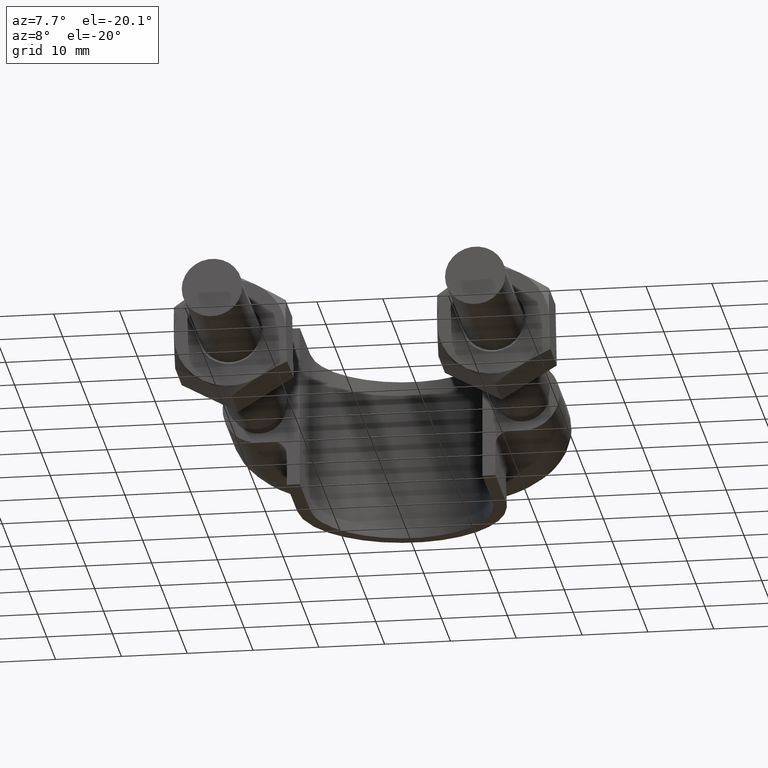
[diagram: clean part render]
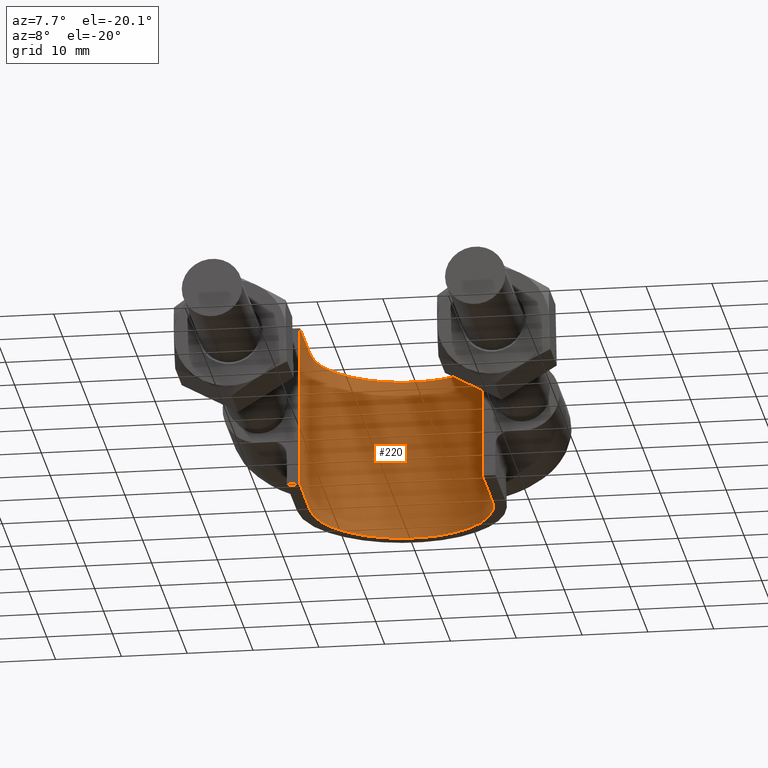
[diagram: same view with one face highlighted and labeled with its STEP entity id]
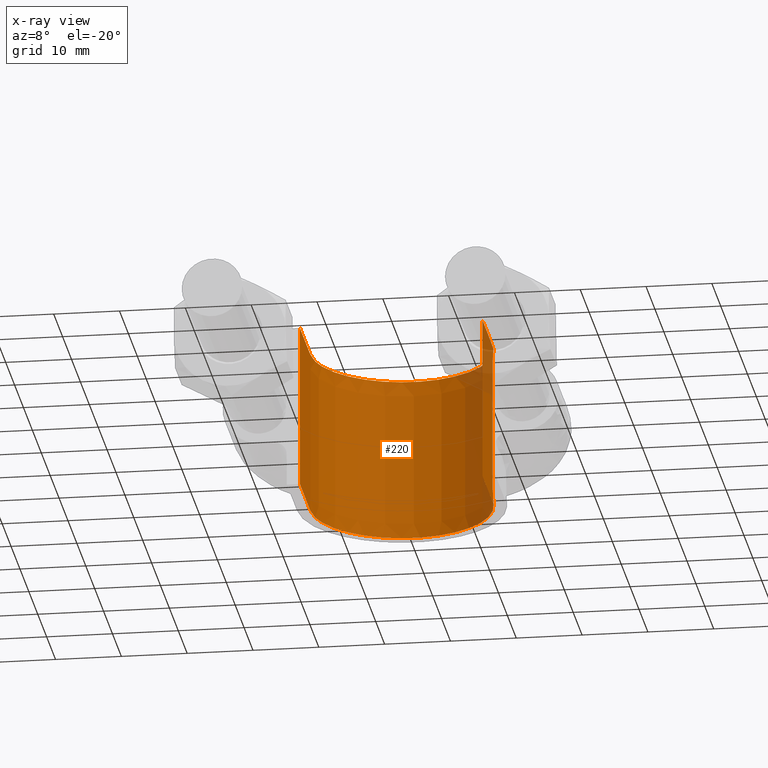
[diagram: x-ray of the same camera — body ghosted, the highlighted face saturated]
A machine part, auxiliary view. The second image highlights one B-rep face of the part: STEP entity #220.
The next image is the same camera in x-ray: the body ghosted, the highlighted face saturated — about 4% of this face is hidden behind the body in this view.
In plain terms, the highlighted face is a SurfaceOfExtrusion surface.
Its self-contained STEP definition (entity closure, byte-faithful):
#220 = ADVANCED_FACE( '', ( #283 ), #284, .T. );
#283 = FACE_OUTER_BOUND( '', #422, .T. );
#284 = SURFACE_OF_LINEAR_EXTRUSION( '', #423, #424 );
#422 = EDGE_LOOP( '', ( #1285, #1286, #1287, #1288 ) );
#423 = B_SPLINE_CURVE_WITH_KNOTS( '', 3, ( #1289, #1290, #1291, #1292, #1293, #1294, #1295, #1296, #1297, #1298, #1299, #1300, #1301, #1302, #1303, #1304, #1305, #1306 ), .UNSPECIFIED., .F., .F., ( 4, 3, 1, 1, 1, 1, 1, 1, 1, 1, 3, 4 ), ( 0.263975155279503, 1.00000000000000, 1.50000000000000, 1.75000000000000, 2.00000000000000, 3.00000000000000, 4.00000000000000, 5.00000000000000, 5.25000000000000, 5.50000000000000, 6.00000000000000, 6.73602484472050 ), .UNSPECIFIED. );
#424 = VECTOR( '', #1307, 1000.00000000000 );
#1285 = ORIENTED_EDGE( '', *, *, #1736, .F. );
#1286 = ORIENTED_EDGE( '', *, *, #1739, .T. );
#1287 = ORIENTED_EDGE( '', *, *, #1740, .T. );
#1288 = ORIENTED_EDGE( '', *, *, #1741, .F. );
#1289 = CARTESIAN_POINT( '', ( -13.8500000000000, 53.3000000000000, -59.0898515348929 ) );
#1290 = CARTESIAN_POINT( '', ( -13.8500000000000, 57.2500000000000, -59.0898515348929 ) );
#1291 = CARTESIAN_POINT( '', ( -13.8500000000000, 61.2000000000000, -59.0898515348929 ) );
#1292 = CARTESIAN_POINT( '', ( -13.8500000000000, 65.1500000000000, -59.0898515348929 ) );
#1293 = CARTESIAN_POINT( '', ( -13.8500000000000, 66.5764090913196, -59.0898515348929 ) );
#1294 = CARTESIAN_POINT( '', ( -13.4987711149041, 68.7652103300043, -59.0898515348929 ) );
#1295 = CARTESIAN_POINT( '', ( -12.3762577063388, 71.4805432618923, -59.0898515348929 ) );
#1296 = CARTESIAN_POINT( '', ( -10.1312776771716, 75.1665191788760, -59.0898515348929 ) );
#1297 = CARTESIAN_POINT( '', ( -4.56410324862349, 79.2237366283484, -59.0898515348929 ) );
#1298 = CARTESIAN_POINT( '', ( 4.56410324862353, 79.2237366283484, -59.0898515348929 ) );
#1299 = CARTESIAN_POINT( '', ( 10.1312776771716, 75.1665191788760, -59.0898515348929 ) );
#1300 = CARTESIAN_POINT( '', ( 12.3762577063388, 71.4805432618923, -59.0898515348929 ) );
#1301 = CARTESIAN_POINT( '', ( 13.4987711149041, 68.7652103300043, -59.0898515348929 ) );
#1302 = CARTESIAN_POINT( '', ( 13.8500000000000, 66.5764090913196, -59.0898515348929 ) );
#1303 = CARTESIAN_POINT( '', ( 13.8500000000000, 65.1500000000000, -59.0898515348929 ) );
#1304 = CARTESIAN_POINT( '', ( 13.8500000000000, 61.2000000000000, -59.0898515348929 ) );
#1305 = CARTESIAN_POINT( '', ( 13.8500000000000, 57.2500000000000, -59.0898515348929 ) );
#1306 = CARTESIAN_POINT( '', ( 13.8500000000000, 53.3000000000000, -59.0898515348929 ) );
#1307 = DIRECTION( '', ( 0.000000000000000, 0.000000000000000, 1.00000000000000 ) );
#1736 = EDGE_CURVE( '', #1860, #1862, #1863, .T. );
#1739 = EDGE_CURVE( '', #1860, #1867, #1868, .T. );
#1740 = EDGE_CURVE( '', #1867, #1869, #1870, .T. );
#1741 = EDGE_CURVE( '', #1862, #1869, #1871, .T. );
#1860 = VERTEX_POINT( '', #2068 );
#1862 = VERTEX_POINT( '', #2071 );
#1863 = LINE( '', #2072, #2073 );
#1867 = VERTEX_POINT( '', #2108 );
#1868 = B_SPLINE_CURVE_WITH_KNOTS( '', 3, ( #2109, #2110, #2111, #2112, #2113, #2114, #2115, #2116, #2117, #2118, #2119, #2120, #2121, #2122, #2123, #2124, #2125, #2126 ), .UNSPECIFIED., .F., .F., ( 4, 3, 1, 1, 1, 1, 1, 1, 1, 1, 3, 4 ), ( 0.263975155279503, 1.00000000000000, 1.50000000000000, 1.75000000000000, 2.00000000000000, 3.00000000000000, 4.00000000000000, 5.00000000000000, 5.25000000000000, 5.50000000000000, 6.00000000000000, 6.73602484472050 ), .UNSPECIFIED. );
#1869 = VERTEX_POINT( '', #2127 );
#1870 = LINE( '', #2128, #2129 );
#1871 = B_SPLINE_CURVE_WITH_KNOTS( '', 3, ( #2130, #2131, #2132, #2133, #2134, #2135, #2136, #2137, #2138, #2139, #2140, #2141, #2142, #2143, #2144, #2145, #2146, #2147 ), .UNSPECIFIED., .F., .F., ( 4, 3, 1, 1, 1, 1, 1, 1, 1, 1, 3, 4 ), ( 0.263975155279503, 1.00000000000000, 1.50000000000000, 1.75000000000000, 2.00000000000000, 3.00000000000000, 4.00000000000000, 5.00000000000000, 5.25000000000000, 5.50000000000000, 6.00000000000000, 6.73602484472050 ), .UNSPECIFIED. );
#2068 = CARTESIAN_POINT( '', ( -13.8500000000000, 53.3000000000000, -12.5000000000000 ) );
#2071 = CARTESIAN_POINT( '', ( -13.8500000000000, 53.3000000000000, 12.5000000000000 ) );
#2072 = CARTESIAN_POINT( '', ( -13.8500000000000, 53.3000000000000, -59.0898515348929 ) );
#2073 = VECTOR( '', #2602, 1000.00000000000 );
#2108 = CARTESIAN_POINT( '', ( 13.8500000000000, 53.3000000000000, -12.5000000000000 ) );
#2109 = CARTESIAN_POINT( '', ( -13.8500000000000, 53.3000000000000, -12.5000000000000 ) );
#2110 = CARTESIAN_POINT( '', ( -13.8500000000000, 57.2500000000000, -12.5000000000000 ) );
#2111 = CARTESIAN_POINT( '', ( -13.8500000000000, 61.2000000000000, -12.5000000000000 ) );
#2112 = CARTESIAN_POINT( '', ( -13.8500000000000, 65.1500000000000, -12.5000000000000 ) );
#2113 = CARTESIAN_POINT( '', ( -13.8500000000000, 66.5764090913196, -12.5000000000000 ) );
#2114 = CARTESIAN_POINT( '', ( -13.4987711149041, 68.7652103300043, -12.5000000000000 ) );
#2115 = CARTESIAN_POINT( '', ( -12.3762577063388, 71.4805432618923, -12.5000000000000 ) );
#2116 = CARTESIAN_POINT( '', ( -10.1312776771716, 75.1665191788760, -12.5000000000000 ) );
#2117 = CARTESIAN_POINT( '', ( -4.56410324862349, 79.2237366283484, -12.5000000000000 ) );
#2118 = CARTESIAN_POINT( '', ( 4.56410324862353, 79.2237366283484, -12.5000000000000 ) );
#2119 = CARTESIAN_POINT( '', ( 10.1312776771716, 75.1665191788760, -12.5000000000000 ) );
#2120 = CARTESIAN_POINT( '', ( 12.3762577063388, 71.4805432618923, -12.5000000000000 ) );
#2121 = CARTESIAN_POINT( '', ( 13.4987711149041, 68.7652103300043, -12.5000000000000 ) );
#2122 = CARTESIAN_POINT( '', ( 13.8500000000000, 66.5764090913196, -12.5000000000000 ) );
#2123 = CARTESIAN_POINT( '', ( 13.8500000000000, 65.1500000000000, -12.5000000000000 ) );
#2124 = CARTESIAN_POINT( '', ( 13.8500000000000, 61.2000000000000, -12.5000000000000 ) );
#2125 = CARTESIAN_POINT( '', ( 13.8500000000000, 57.2500000000000, -12.5000000000000 ) );
#2126 = CARTESIAN_POINT( '', ( 13.8500000000000, 53.3000000000000, -12.5000000000000 ) );
#2127 = CARTESIAN_POINT( '', ( 13.8500000000000, 53.3000000000000, 12.5000000000000 ) );
#2128 = CARTESIAN_POINT( '', ( 13.8500000000000, 53.3000000000000, -59.0898515348929 ) );
#2129 = VECTOR( '', #2604, 1000.00000000000 );
#2130 = CARTESIAN_POINT( '', ( -13.8500000000000, 53.3000000000000, 12.5000000000000 ) );
#2131 = CARTESIAN_POINT( '', ( -13.8500000000000, 57.2500000000000, 12.5000000000000 ) );
#2132 = CARTESIAN_POINT( '', ( -13.8500000000000, 61.2000000000000, 12.5000000000000 ) );
#2133 = CARTESIAN_POINT( '', ( -13.8500000000000, 65.1500000000000, 12.5000000000000 ) );
#2134 = CARTESIAN_POINT( '', ( -13.8500000000000, 66.5764090913196, 12.5000000000000 ) );
#2135 = CARTESIAN_POINT( '', ( -13.4987711149041, 68.7652103300043, 12.5000000000000 ) );
#2136 = CARTESIAN_POINT( '', ( -12.3762577063388, 71.4805432618923, 12.5000000000000 ) );
#2137 = CARTESIAN_POINT( '', ( -10.1312776771716, 75.1665191788760, 12.5000000000000 ) );
#2138 = CARTESIAN_POINT( '', ( -4.56410324862349, 79.2237366283484, 12.5000000000000 ) );
#2139 = CARTESIAN_POINT( '', ( 4.56410324862353, 79.2237366283484, 12.5000000000000 ) );
#2140 = CARTESIAN_POINT( '', ( 10.1312776771716, 75.1665191788760, 12.5000000000000 ) );
#2141 = CARTESIAN_POINT( '', ( 12.3762577063388, 71.4805432618923, 12.5000000000000 ) );
#2142 = CARTESIAN_POINT( '', ( 13.4987711149041, 68.7652103300043, 12.5000000000000 ) );
#2143 = CARTESIAN_POINT( '', ( 13.8500000000000, 66.5764090913196, 12.5000000000000 ) );
#2144 = CARTESIAN_POINT( '', ( 13.8500000000000, 65.1500000000000, 12.5000000000000 ) );
#2145 = CARTESIAN_POINT( '', ( 13.8500000000000, 61.2000000000000, 12.5000000000000 ) );
#2146 = CARTESIAN_POINT( '', ( 13.8500000000000, 57.2500000000000, 12.5000000000000 ) );
#2147 = CARTESIAN_POINT( '', ( 13.8500000000000, 53.3000000000000, 12.5000000000000 ) );
#2602 = DIRECTION( '', ( 0.000000000000000, 0.000000000000000, 1.00000000000000 ) );
#2604 = DIRECTION( '', ( 0.000000000000000, 0.000000000000000, 1.00000000000000 ) );